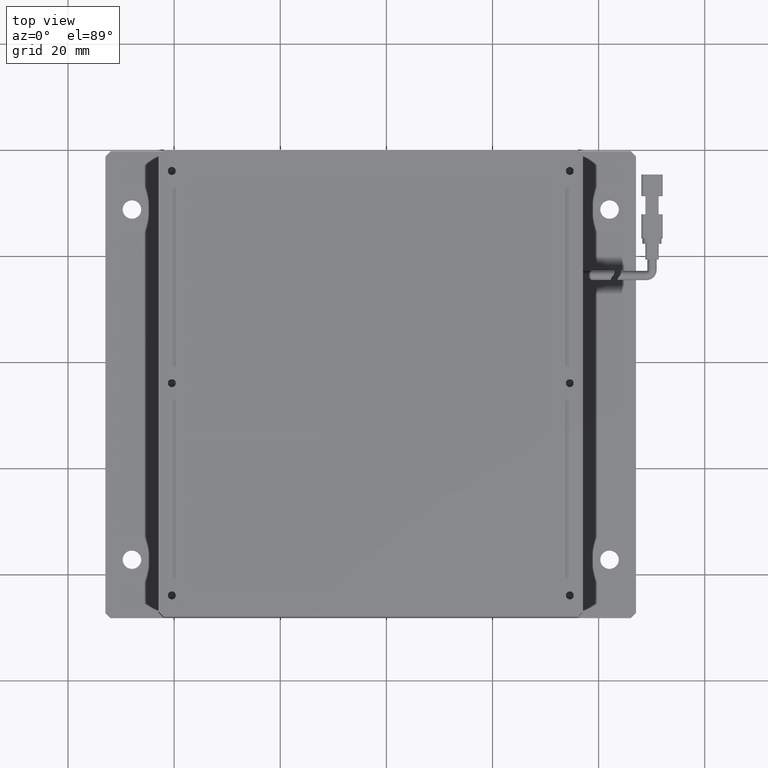
[diagram: clean part render]
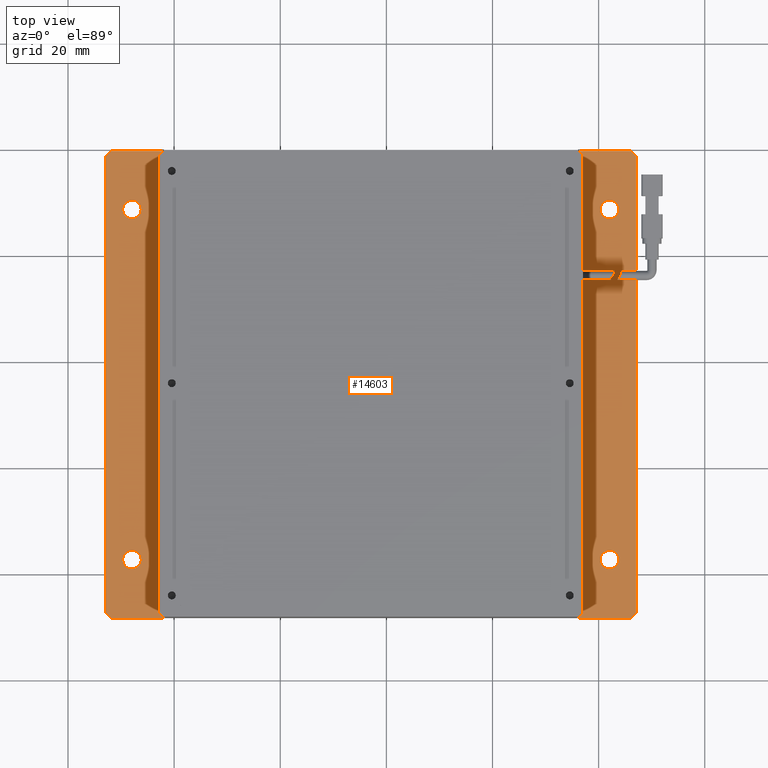
[diagram: same view with one face highlighted and labeled with its STEP entity id]
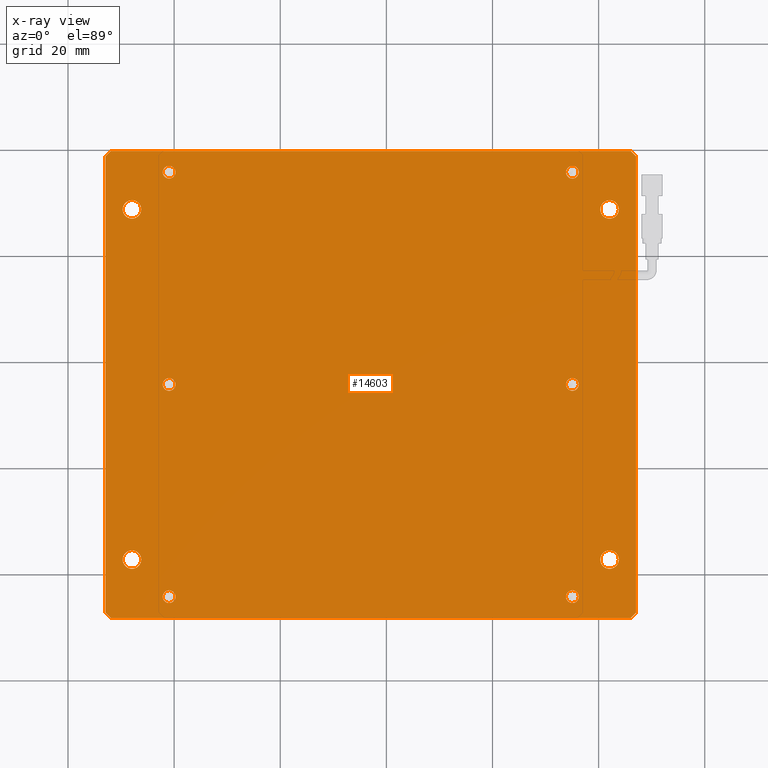
[diagram: x-ray of the same camera — body ghosted, the highlighted face saturated]
A machine part, top view. The second image highlights one B-rep face of the part: STEP entity #14603.
The next image is the same camera in x-ray: the body ghosted, the highlighted face saturated — about 0% of this face is hidden behind the body in this view.
In plain terms, the highlighted planar face has unit normal (0, 0, -1).
Its self-contained STEP definition (entity closure, byte-faithful):
#8 = FACE_BOUND ( 'NONE', #17206, .T. ) ;
#54 = DIRECTION ( 'NONE',  ( -1.000000000000000000, 0.0000000000000000000, 0.0000000000000000000 ) ) ;
#349 = ORIENTED_EDGE ( 'NONE', *, *, #7487, .F. ) ;
#379 = CIRCLE ( 'NONE', #12371, 1.750000000000001600 ) ;
#456 = FACE_BOUND ( 'NONE', #9632, .T. ) ;
#530 = DIRECTION ( 'NONE',  ( -1.000000000000000000, 0.0000000000000000000, 0.0000000000000000000 ) ) ;
#613 = AXIS2_PLACEMENT_3D ( 'NONE', #10000, #1775, #11357 ) ;
#753 = CIRCLE ( 'NONE', #13976, 1.199999999999992600 ) ;
#855 = EDGE_LOOP ( 'NONE', ( #11399, #8693 ) ) ;
#862 = CARTESIAN_POINT ( 'NONE',  ( -27.94768995799927000, 28.79992363497522900, -4.547577592273199800E-012 ) ) ;
#940 = CARTESIAN_POINT ( 'NONE',  ( -32.94768995799925900, 39.79992363497521500, -4.547577592273199800E-012 ) ) ;
#944 = CIRCLE ( 'NONE', #12738, 1.199999999999992600 ) ;
#979 = ORIENTED_EDGE ( 'NONE', *, *, #6898, .F. ) ;
#1216 = AXIS2_PLACEMENT_3D ( 'NONE', #4916, #14422, #6324 ) ;
#1252 = CARTESIAN_POINT ( 'NONE',  ( 56.25231004200073000, -4.200076365024784800, -4.547577592273199800E-012 ) ) ;
#1280 = CARTESIAN_POINT ( 'NONE',  ( -32.94768995799927300, 38.79992363497520800, -4.547577592273199800E-012 ) ) ;
#1420 = DIRECTION ( 'NONE',  ( -1.000000000000000000, 0.0000000000000000000, 0.0000000000000000000 ) ) ;
#1425 = DIRECTION ( 'NONE',  ( -1.000000000000000000, 0.0000000000000000000, 0.0000000000000000000 ) ) ;
#1427 = CIRCLE ( 'NONE', #16147, 1.749999999999998000 ) ;
#1440 = ORIENTED_EDGE ( 'NONE', *, *, #13817, .F. ) ;
#1534 = VERTEX_POINT ( 'NONE', #14886 ) ;
#1538 = EDGE_CURVE ( 'NONE', #14048, #6013, #6396, .T. ) ;
#1588 = DIRECTION ( 'NONE',  ( 0.0000000000000000000, 0.0000000000000000000, -1.000000000000000000 ) ) ;
#1740 = VERTEX_POINT ( 'NONE', #7171 ) ;
#1775 = DIRECTION ( 'NONE',  ( 0.0000000000000000000, 0.0000000000000000000, 1.000000000000000000 ) ) ;
#1821 = EDGE_LOOP ( 'NONE', ( #12837, #14396 ) ) ;
#1872 = VERTEX_POINT ( 'NONE', #3298 ) ;
#2027 = CIRCLE ( 'NONE', #13961, 1.199999999999992600 ) ;
#2036 = CARTESIAN_POINT ( 'NONE',  ( 56.25231004200073000, -44.20007636502478500, -4.547577592273199800E-012 ) ) ;
#2089 = CARTESIAN_POINT ( 'NONE',  ( -20.94768995799925200, -4.200076365024784800, -4.547577592273199800E-012 ) ) ;
#2137 = VERTEX_POINT ( 'NONE', #10079 ) ;
#2245 = DIRECTION ( 'NONE',  ( -1.000000000000000000, 0.0000000000000000000, 0.0000000000000000000 ) ) ;
#2508 = DIRECTION ( 'NONE',  ( 0.0000000000000000000, 0.0000000000000000000, 1.000000000000000000 ) ) ;
#2799 = CARTESIAN_POINT ( 'NONE',  ( -32.94768995799925900, 39.79992363497521500, -4.547577592273199800E-012 ) ) ;
#2844 = CARTESIAN_POINT ( 'NONE',  ( -19.74768995799926300, 35.79992363497520800, -4.547577592273199800E-012 ) ) ;
#2884 = DIRECTION ( 'NONE',  ( -0.0000000000000000000, -1.000000000000000000, -0.0000000000000000000 ) ) ;
#2900 = EDGE_CURVE ( 'NONE', #14671, #9446, #5189, .T. ) ;
#3070 = CARTESIAN_POINT ( 'NONE',  ( -26.19768995799929500, -37.20007636502477100, -4.547577592273199800E-012 ) ) ;
#3112 = EDGE_CURVE ( 'NONE', #16464, #17630, #10925, .T. ) ;
#3288 = CARTESIAN_POINT ( 'NONE',  ( -20.94768995799925500, -44.20007636502478500, -4.547577592273199800E-012 ) ) ;
#3298 = CARTESIAN_POINT ( 'NONE',  ( -26.19768995799927000, 28.79992363497522900, -4.547577592273199800E-012 ) ) ;
#3462 = VERTEX_POINT ( 'NONE', #2036 ) ;
#3492 = DIRECTION ( 'NONE',  ( -1.000000000000000000, 0.0000000000000000000, 0.0000000000000000000 ) ) ;
#3521 = CARTESIAN_POINT ( 'NONE',  ( -20.94768995799925500, 35.79992363497520800, -4.547577592273199800E-012 ) ) ;
#3531 = CIRCLE ( 'NONE', #6029, 1.749999999999998000 ) ;
#3583 = VERTEX_POINT ( 'NONE', #14526 ) ;
#3691 = AXIS2_PLACEMENT_3D ( 'NONE', #17784, #9668, #1420 ) ;
#3704 = CARTESIAN_POINT ( 'NONE',  ( -29.69768995799929100, -37.20007636502477100, -4.547577592273199800E-012 ) ) ;
#3725 = FACE_BOUND ( 'NONE', #10448, .T. ) ;
#3747 = AXIS2_PLACEMENT_3D ( 'NONE', #12155, #3933, #13511 ) ;
#3756 = CIRCLE ( 'NONE', #6735, 1.199999999999992600 ) ;
#3884 = ORIENTED_EDGE ( 'NONE', *, *, #12918, .F. ) ;
#3933 = DIRECTION ( 'NONE',  ( 0.0000000000000000000, 0.0000000000000000000, 1.000000000000000000 ) ) ;
#3989 = ORIENTED_EDGE ( 'NONE', *, *, #9517, .F. ) ;
#4055 = CIRCLE ( 'NONE', #9401, 1.199999999999992600 ) ;
#4076 = LINE ( 'NONE', #7313, #11366 ) ;
#4160 = FACE_BOUND ( 'NONE', #8525, .T. ) ;
#4235 = EDGE_LOOP ( 'NONE', ( #14066, #8201 ) ) ;
#4300 = PLANE ( 'NONE',  #11171 ) ;
#4527 = VERTEX_POINT ( 'NONE', #1252 ) ;
#4636 = EDGE_CURVE ( 'NONE', #9135, #14671, #10792, .T. ) ;
#4662 = CIRCLE ( 'NONE', #7314, 1.199999999999992600 ) ;
#4690 = DIRECTION ( 'NONE',  ( -1.000000000000000000, 0.0000000000000000000, 0.0000000000000000000 ) ) ;
#4695 = CARTESIAN_POINT ( 'NONE',  ( 55.05231004200073400, -44.20007636502478500, -4.547577592273199800E-012 ) ) ;
#4903 = VERTEX_POINT ( 'NONE', #9029 ) ;
#4916 = CARTESIAN_POINT ( 'NONE',  ( 62.05231004200072700, 28.79992363497521500, -4.547577592273199800E-012 ) ) ;
#4928 = DIRECTION ( 'NONE',  ( -1.000000000000000000, 0.0000000000000000000, 0.0000000000000000000 ) ) ;
#4975 = DIRECTION ( 'NONE',  ( 0.0000000000000000000, 0.0000000000000000000, 1.000000000000000000 ) ) ;
#4983 = AXIS2_PLACEMENT_3D ( 'NONE', #13141, #4975, #14481 ) ;
#5070 = FACE_OUTER_BOUND ( 'NONE', #12857, .T. ) ;
#5189 = LINE ( 'NONE', #2799, #7989 ) ;
#5283 = CARTESIAN_POINT ( 'NONE',  ( -19.74768995799926300, -44.20007636502478500, -4.547577592273199800E-012 ) ) ;
#5381 = EDGE_CURVE ( 'NONE', #10566, #16097, #379, .T. ) ;
#5420 = DIRECTION ( 'NONE',  ( 0.0000000000000000000, 0.0000000000000000000, 1.000000000000000000 ) ) ;
#5509 = EDGE_CURVE ( 'NONE', #4903, #14979, #6065, .T. ) ;
#5525 = LINE ( 'NONE', #1280, #12340 ) ;
#6013 = VERTEX_POINT ( 'NONE', #13545 ) ;
#6026 = LINE ( 'NONE', #9698, #16405 ) ;
#6029 = AXIS2_PLACEMENT_3D ( 'NONE', #862, #10488, #2245 ) ;
#6065 = CIRCLE ( 'NONE', #3747, 1.199999999999992600 ) ;
#6104 = DIRECTION ( 'NONE',  ( -1.000000000000000000, 0.0000000000000000000, 0.0000000000000000000 ) ) ;
#6310 = LINE ( 'NONE', #6846, #13102 ) ;
#6324 = DIRECTION ( 'NONE',  ( -1.000000000000000000, 0.0000000000000000000, 0.0000000000000000000 ) ) ;
#6396 = CIRCLE ( 'NONE', #11508, 1.750000000000001600 ) ;
#6735 = AXIS2_PLACEMENT_3D ( 'NONE', #4695, #14205, #6104 ) ;
#6738 = EDGE_CURVE ( 'NONE', #16812, #17652, #10647, .T. ) ;
#6846 = CARTESIAN_POINT ( 'NONE',  ( 66.05231004200074100, 39.79992363497521500, -4.547577592273199800E-012 ) ) ;
#6898 = EDGE_CURVE ( 'NONE', #16097, #10566, #12762, .T. ) ;
#6973 = CIRCLE ( 'NONE', #7963, 1.199999999999992600 ) ;
#7042 = DIRECTION ( 'NONE',  ( -1.000000000000000000, 0.0000000000000000000, -0.0000000000000000000 ) ) ;
#7171 = CARTESIAN_POINT ( 'NONE',  ( -22.14768995799924800, 35.79992363497520800, -4.547577592273199800E-012 ) ) ;
#7176 = VERTEX_POINT ( 'NONE', #8342 ) ;
#7178 = EDGE_CURVE ( 'NONE', #16070, #13908, #6973, .T. ) ;
#7240 = CARTESIAN_POINT ( 'NONE',  ( 55.05231004200073400, -4.200076365024784800, -4.547577592273199800E-012 ) ) ;
#7313 = CARTESIAN_POINT ( 'NONE',  ( 67.05231004200074100, -47.20007636502479900, -4.547577592273199800E-012 ) ) ;
#7314 = AXIS2_PLACEMENT_3D ( 'NONE', #3521, #13104, #4928 ) ;
#7397 = EDGE_CURVE ( 'NONE', #13908, #16070, #8653, .T. ) ;
#7432 = FACE_BOUND ( 'NONE', #7947, .T. ) ;
#7487 = EDGE_CURVE ( 'NONE', #15737, #7176, #11604, .T. ) ;
#7754 = ORIENTED_EDGE ( 'NONE', *, *, #2900, .F. ) ;
#7847 = CARTESIAN_POINT ( 'NONE',  ( 62.05231004200072700, 28.79992363497521500, -4.547577592273199800E-012 ) ) ;
#7947 = EDGE_LOOP ( 'NONE', ( #11753, #3884 ) ) ;
#7963 = AXIS2_PLACEMENT_3D ( 'NONE', #16494, #8399, #54 ) ;
#7989 = VECTOR ( 'NONE', #8595, 1000.000000000000000 ) ;
#7993 = CARTESIAN_POINT ( 'NONE',  ( 62.05231004200072700, -37.20007636502477100, -4.547577592273199800E-012 ) ) ;
#8032 = VECTOR ( 'NONE', #13290, 1000.000000000000000 ) ;
#8068 = ORIENTED_EDGE ( 'NONE', *, *, #13000, .F. ) ;
#8128 = CARTESIAN_POINT ( 'NONE',  ( -19.74768995799926000, -4.200076365024784800, -4.547577592273199800E-012 ) ) ;
#8161 = ORIENTED_EDGE ( 'NONE', *, *, #8756, .F. ) ;
#8191 = CARTESIAN_POINT ( 'NONE',  ( 60.30231004200072700, 28.79992363497521500, -4.547577592273199800E-012 ) ) ;
#8201 = ORIENTED_EDGE ( 'NONE', *, *, #7178, .F. ) ;
#8274 = CARTESIAN_POINT ( 'NONE',  ( 63.80231004200073400, -37.20007636502477100, -4.547577592273199800E-012 ) ) ;
#8338 = DIRECTION ( 'NONE',  ( -1.000000000000000000, 0.0000000000000000000, 0.0000000000000000000 ) ) ;
#8342 = CARTESIAN_POINT ( 'NONE',  ( 66.05231004200076900, 39.79992363497521500, -4.547577592273199800E-012 ) ) ;
#8399 = DIRECTION ( 'NONE',  ( 0.0000000000000000000, 0.0000000000000000000, 1.000000000000000000 ) ) ;
#8525 = EDGE_LOOP ( 'NONE', ( #16644, #9802 ) ) ;
#8595 = DIRECTION ( 'NONE',  ( 0.0000000000000000000, 1.000000000000000000, 0.0000000000000000000 ) ) ;
#8597 = DIRECTION ( 'NONE',  ( -1.000000000000000000, 0.0000000000000000000, 0.0000000000000000000 ) ) ;
#8605 = DIRECTION ( 'NONE',  ( -0.7071067811865622300, -0.7071067811865328100, 0.0000000000000000000 ) ) ;
#8631 = VERTEX_POINT ( 'NONE', #13285 ) ;
#8653 = CIRCLE ( 'NONE', #13947, 1.199999999999992600 ) ;
#8693 = ORIENTED_EDGE ( 'NONE', *, *, #15496, .F. ) ;
#8756 = EDGE_CURVE ( 'NONE', #15386, #1872, #9634, .T. ) ;
#8831 = DIRECTION ( 'NONE',  ( 0.0000000000000000000, 0.0000000000000000000, 1.000000000000000000 ) ) ;
#8869 = ORIENTED_EDGE ( 'NONE', *, *, #4636, .F. ) ;
#8888 = VECTOR ( 'NONE', #11921, 999.9999999999998900 ) ;
#8940 = EDGE_CURVE ( 'NONE', #17652, #16812, #1427, .T. ) ;
#9029 = CARTESIAN_POINT ( 'NONE',  ( -22.14768995799924800, -44.20007636502478500, -4.547577592273199800E-012 ) ) ;
#9119 = EDGE_CURVE ( 'NONE', #14979, #4903, #753, .T. ) ;
#9129 = DIRECTION ( 'NONE',  ( 0.0000000000000000000, 0.0000000000000000000, 1.000000000000000000 ) ) ;
#9135 = VERTEX_POINT ( 'NONE', #15634 ) ;
#9180 = CARTESIAN_POINT ( 'NONE',  ( 62.05231004200072700, -37.20007636502477100, -4.547577592273199800E-012 ) ) ;
#9211 = DIRECTION ( 'NONE',  ( -1.000000000000000000, 0.0000000000000000000, 0.0000000000000000000 ) ) ;
#9220 = CIRCLE ( 'NONE', #12024, 1.750000000000001600 ) ;
#9223 = EDGE_CURVE ( 'NONE', #1740, #14559, #4662, .T. ) ;
#9271 = ORIENTED_EDGE ( 'NONE', *, *, #11353, .F. ) ;
#9343 = DIRECTION ( 'NONE',  ( -1.000000000000000000, 0.0000000000000000000, 0.0000000000000000000 ) ) ;
#9401 = AXIS2_PLACEMENT_3D ( 'NONE', #13554, #5420, #14904 ) ;
#9446 = VERTEX_POINT ( 'NONE', #12091 ) ;
#9475 = ORIENTED_EDGE ( 'NONE', *, *, #5381, .F. ) ;
#9517 = EDGE_CURVE ( 'NONE', #9446, #15737, #5525, .T. ) ;
#9525 = DIRECTION ( 'NONE',  ( 0.7071067811865474600, -0.7071067811865474600, 0.0000000000000000000 ) ) ;
#9632 = EDGE_LOOP ( 'NONE', ( #11629, #13247 ) ) ;
#9634 = CIRCLE ( 'NONE', #3691, 1.749999999999998000 ) ;
#9654 = CARTESIAN_POINT ( 'NONE',  ( -32.94768995799925900, -48.20007636502478500, -4.547577592273199800E-012 ) ) ;
#9668 = DIRECTION ( 'NONE',  ( 0.0000000000000000000, 0.0000000000000000000, 1.000000000000000000 ) ) ;
#9676 = DIRECTION ( 'NONE',  ( 0.0000000000000000000, 0.0000000000000000000, 1.000000000000000000 ) ) ;
#9698 = CARTESIAN_POINT ( 'NONE',  ( 67.05231004200074100, 39.79992363497521500, -4.547577592273199800E-012 ) ) ;
#9802 = ORIENTED_EDGE ( 'NONE', *, *, #9119, .F. ) ;
#9818 = CARTESIAN_POINT ( 'NONE',  ( -32.94768995799925900, 39.79992363497521500, -4.547577592273199800E-012 ) ) ;
#9877 = CARTESIAN_POINT ( 'NONE',  ( -32.94768995799925900, -47.20007636502478500, -4.547577592273199800E-012 ) ) ;
#10000 = CARTESIAN_POINT ( 'NONE',  ( -27.94768995799929100, -37.20007636502477100, -4.547577592273199800E-012 ) ) ;
#10079 = CARTESIAN_POINT ( 'NONE',  ( 67.05231004200074100, -47.20007636502479900, -4.547577592273199800E-012 ) ) ;
#10448 = EDGE_LOOP ( 'NONE', ( #15402, #12882 ) ) ;
#10470 = ORIENTED_EDGE ( 'NONE', *, *, #16741, .F. ) ;
#10488 = DIRECTION ( 'NONE',  ( 0.0000000000000000000, 0.0000000000000000000, 1.000000000000000000 ) ) ;
#10566 = VERTEX_POINT ( 'NONE', #13099 ) ;
#10608 = FACE_BOUND ( 'NONE', #13307, .T. ) ;
#10647 = CIRCLE ( 'NONE', #613, 1.749999999999998000 ) ;
#10760 = CARTESIAN_POINT ( 'NONE',  ( 55.05231004200073400, -44.20007636502478500, -4.547577592273199800E-012 ) ) ;
#10792 = LINE ( 'NONE', #14446, #8888 ) ;
#10925 = CIRCLE ( 'NONE', #14381, 1.199999999999992600 ) ;
#11024 = FACE_BOUND ( 'NONE', #855, .T. ) ;
#11171 = AXIS2_PLACEMENT_3D ( 'NONE', #9818, #1588, #11189 ) ;
#11189 = DIRECTION ( 'NONE',  ( -1.000000000000000000, 0.0000000000000000000, -0.0000000000000000000 ) ) ;
#11353 = EDGE_CURVE ( 'NONE', #7176, #3583, #6310, .T. ) ;
#11357 = DIRECTION ( 'NONE',  ( -1.000000000000000000, 0.0000000000000000000, 0.0000000000000000000 ) ) ;
#11366 = VECTOR ( 'NONE', #8605, 1000.000000000000000 ) ;
#11379 = CARTESIAN_POINT ( 'NONE',  ( -31.94768995799925900, 39.79992363497521500, -4.547577592273199800E-012 ) ) ;
#11399 = ORIENTED_EDGE ( 'NONE', *, *, #14217, .F. ) ;
#11441 = FACE_BOUND ( 'NONE', #4235, .T. ) ;
#11482 = CIRCLE ( 'NONE', #4983, 1.199999999999992600 ) ;
#11508 = AXIS2_PLACEMENT_3D ( 'NONE', #9180, #9129, #8338 ) ;
#11604 = LINE ( 'NONE', #940, #8032 ) ;
#11612 = ORIENTED_EDGE ( 'NONE', *, *, #15721, .F. ) ;
#11629 = ORIENTED_EDGE ( 'NONE', *, *, #9223, .F. ) ;
#11686 = DIRECTION ( 'NONE',  ( 0.0000000000000000000, 0.0000000000000000000, 1.000000000000000000 ) ) ;
#11753 = ORIENTED_EDGE ( 'NONE', *, *, #3112, .F. ) ;
#11921 = DIRECTION ( 'NONE',  ( -0.7071067811865424700, 0.7071067811865526800, 0.0000000000000000000 ) ) ;
#11934 = EDGE_CURVE ( 'NONE', #14559, #1740, #4055, .T. ) ;
#12024 = AXIS2_PLACEMENT_3D ( 'NONE', #7993, #17445, #9343 ) ;
#12091 = CARTESIAN_POINT ( 'NONE',  ( -32.94768995799926600, 38.79992363497523700, -4.547577592273199800E-012 ) ) ;
#12120 = DIRECTION ( 'NONE',  ( -1.000000000000000000, 0.0000000000000000000, 0.0000000000000000000 ) ) ;
#12155 = CARTESIAN_POINT ( 'NONE',  ( -20.94768995799925500, -44.20007636502478500, -4.547577592273199800E-012 ) ) ;
#12234 = DIRECTION ( 'NONE',  ( -1.000000000000000000, 0.0000000000000000000, 0.0000000000000000000 ) ) ;
#12340 = VECTOR ( 'NONE', #17644, 1000.000000000000000 ) ;
#12371 = AXIS2_PLACEMENT_3D ( 'NONE', #7847, #17306, #9211 ) ;
#12400 = ORIENTED_EDGE ( 'NONE', *, *, #13576, .F. ) ;
#12450 = EDGE_CURVE ( 'NONE', #6013, #14048, #9220, .T. ) ;
#12469 = DIRECTION ( 'NONE',  ( 0.0000000000000000000, 0.0000000000000000000, 1.000000000000000000 ) ) ;
#12472 = CARTESIAN_POINT ( 'NONE',  ( 53.85231004200074500, -44.20007636502478500, -4.547577592273199800E-012 ) ) ;
#12582 = CARTESIAN_POINT ( 'NONE',  ( 55.05231004200073400, 35.79992363497522200, -4.547577592273199800E-012 ) ) ;
#12738 = AXIS2_PLACEMENT_3D ( 'NONE', #7240, #16701, #8597 ) ;
#12762 = CIRCLE ( 'NONE', #1216, 1.750000000000001600 ) ;
#12837 = ORIENTED_EDGE ( 'NONE', *, *, #12450, .F. ) ;
#12857 = EDGE_LOOP ( 'NONE', ( #9271, #349, #3989, #7754, #8869, #12400, #11612, #10470 ) ) ;
#12863 = DIRECTION ( 'NONE',  ( 0.0000000000000000000, 0.0000000000000000000, 1.000000000000000000 ) ) ;
#12882 = ORIENTED_EDGE ( 'NONE', *, *, #6738, .F. ) ;
#12918 = EDGE_CURVE ( 'NONE', #17630, #16464, #2027, .T. ) ;
#13000 = EDGE_CURVE ( 'NONE', #8631, #4527, #944, .T. ) ;
#13099 = CARTESIAN_POINT ( 'NONE',  ( 63.80231004200073400, 28.79992363497521500, -4.547577592273199800E-012 ) ) ;
#13102 = VECTOR ( 'NONE', #9525, 1000.000000000000100 ) ;
#13104 = DIRECTION ( 'NONE',  ( 0.0000000000000000000, 0.0000000000000000000, 1.000000000000000000 ) ) ;
#13141 = CARTESIAN_POINT ( 'NONE',  ( 55.05231004200073400, -4.200076365024784800, -4.547577592273199800E-012 ) ) ;
#13208 = EDGE_CURVE ( 'NONE', #1872, #15386, #3531, .T. ) ;
#13219 = CARTESIAN_POINT ( 'NONE',  ( 56.25231004200073000, 35.79992363497522200, -4.547577592273199800E-012 ) ) ;
#13247 = ORIENTED_EDGE ( 'NONE', *, *, #11934, .F. ) ;
#13285 = CARTESIAN_POINT ( 'NONE',  ( 53.85231004200074500, -4.200076365024784800, -4.547577592273199800E-012 ) ) ;
#13290 = DIRECTION ( 'NONE',  ( 1.000000000000000000, -0.0000000000000000000, 0.0000000000000000000 ) ) ;
#13307 = EDGE_LOOP ( 'NONE', ( #979, #9475 ) ) ;
#13357 = LINE ( 'NONE', #9654, #16529 ) ;
#13362 = CARTESIAN_POINT ( 'NONE',  ( -22.14768995799924400, -4.200076365024784800, -4.547577592273199800E-012 ) ) ;
#13511 = DIRECTION ( 'NONE',  ( -1.000000000000000000, 0.0000000000000000000, 0.0000000000000000000 ) ) ;
#13545 = CARTESIAN_POINT ( 'NONE',  ( 60.30231004200072700, -37.20007636502477100, -4.547577592273199800E-012 ) ) ;
#13554 = CARTESIAN_POINT ( 'NONE',  ( -20.94768995799925500, 35.79992363497520800, -4.547577592273199800E-012 ) ) ;
#13569 = ORIENTED_EDGE ( 'NONE', *, *, #13208, .F. ) ;
#13576 = EDGE_CURVE ( 'NONE', #1534, #9135, #13357, .T. ) ;
#13817 = EDGE_CURVE ( 'NONE', #4527, #8631, #11482, .T. ) ;
#13908 = VERTEX_POINT ( 'NONE', #13362 ) ;
#13947 = AXIS2_PLACEMENT_3D ( 'NONE', #2089, #11686, #3492 ) ;
#13961 = AXIS2_PLACEMENT_3D ( 'NONE', #17790, #9676, #1425 ) ;
#13976 = AXIS2_PLACEMENT_3D ( 'NONE', #3288, #12863, #4690 ) ;
#14048 = VERTEX_POINT ( 'NONE', #8274 ) ;
#14066 = ORIENTED_EDGE ( 'NONE', *, *, #7397, .F. ) ;
#14156 = AXIS2_PLACEMENT_3D ( 'NONE', #10760, #2508, #12120 ) ;
#14195 = FACE_BOUND ( 'NONE', #1821, .T. ) ;
#14205 = DIRECTION ( 'NONE',  ( 0.0000000000000000000, 0.0000000000000000000, 1.000000000000000000 ) ) ;
#14217 = EDGE_CURVE ( 'NONE', #15629, #3462, #3756, .T. ) ;
#14381 = AXIS2_PLACEMENT_3D ( 'NONE', #12582, #12469, #12234 ) ;
#14396 = ORIENTED_EDGE ( 'NONE', *, *, #1538, .F. ) ;
#14422 = DIRECTION ( 'NONE',  ( 0.0000000000000000000, 0.0000000000000000000, 1.000000000000000000 ) ) ;
#14446 = CARTESIAN_POINT ( 'NONE',  ( -31.94768995799927300, -48.20007636502478500, -4.547577592273199800E-012 ) ) ;
#14470 = CARTESIAN_POINT ( 'NONE',  ( -29.69768995799926600, 28.79992363497522900, -4.547577592273199800E-012 ) ) ;
#14481 = DIRECTION ( 'NONE',  ( -1.000000000000000000, 0.0000000000000000000, 0.0000000000000000000 ) ) ;
#14526 = CARTESIAN_POINT ( 'NONE',  ( 67.05231004200074100, 38.79992363497520800, -4.547577592273199800E-012 ) ) ;
#14559 = VERTEX_POINT ( 'NONE', #2844 ) ;
#14603 = ADVANCED_FACE ( 'NONE', ( #5070, #11441, #4160, #456, #14626, #11024, #7432, #3725, #8, #14195, #10608 ), #4300, .F. ) ;
#14626 = FACE_BOUND ( 'NONE', #16820, .T. ) ;
#14671 = VERTEX_POINT ( 'NONE', #9877 ) ;
#14886 = CARTESIAN_POINT ( 'NONE',  ( 66.05231004200074100, -48.20007636502478500, -4.547577592273199800E-012 ) ) ;
#14904 = DIRECTION ( 'NONE',  ( -1.000000000000000000, 0.0000000000000000000, 0.0000000000000000000 ) ) ;
#14979 = VERTEX_POINT ( 'NONE', #5283 ) ;
#15386 = VERTEX_POINT ( 'NONE', #14470 ) ;
#15402 = ORIENTED_EDGE ( 'NONE', *, *, #8940, .F. ) ;
#15496 = EDGE_CURVE ( 'NONE', #3462, #15629, #16266, .T. ) ;
#15629 = VERTEX_POINT ( 'NONE', #12472 ) ;
#15634 = CARTESIAN_POINT ( 'NONE',  ( -31.94768995799927300, -48.20007636502478500, -4.547577592273199800E-012 ) ) ;
#15721 = EDGE_CURVE ( 'NONE', #2137, #1534, #4076, .T. ) ;
#15737 = VERTEX_POINT ( 'NONE', #11379 ) ;
#15818 = CARTESIAN_POINT ( 'NONE',  ( 53.85231004200074500, 35.79992363497522200, -4.547577592273199800E-012 ) ) ;
#16070 = VERTEX_POINT ( 'NONE', #8128 ) ;
#16097 = VERTEX_POINT ( 'NONE', #8191 ) ;
#16147 = AXIS2_PLACEMENT_3D ( 'NONE', #16927, #8831, #530 ) ;
#16266 = CIRCLE ( 'NONE', #14156, 1.199999999999992600 ) ;
#16405 = VECTOR ( 'NONE', #2884, 1000.000000000000000 ) ;
#16464 = VERTEX_POINT ( 'NONE', #15818 ) ;
#16494 = CARTESIAN_POINT ( 'NONE',  ( -20.94768995799925200, -4.200076365024784800, -4.547577592273199800E-012 ) ) ;
#16529 = VECTOR ( 'NONE', #7042, 1000.000000000000000 ) ;
#16644 = ORIENTED_EDGE ( 'NONE', *, *, #5509, .F. ) ;
#16701 = DIRECTION ( 'NONE',  ( 0.0000000000000000000, 0.0000000000000000000, 1.000000000000000000 ) ) ;
#16741 = EDGE_CURVE ( 'NONE', #3583, #2137, #6026, .T. ) ;
#16812 = VERTEX_POINT ( 'NONE', #3070 ) ;
#16820 = EDGE_LOOP ( 'NONE', ( #8068, #1440 ) ) ;
#16927 = CARTESIAN_POINT ( 'NONE',  ( -27.94768995799929100, -37.20007636502477100, -4.547577592273199800E-012 ) ) ;
#17206 = EDGE_LOOP ( 'NONE', ( #8161, #13569 ) ) ;
#17306 = DIRECTION ( 'NONE',  ( 0.0000000000000000000, 0.0000000000000000000, 1.000000000000000000 ) ) ;
#17445 = DIRECTION ( 'NONE',  ( 0.0000000000000000000, 0.0000000000000000000, 1.000000000000000000 ) ) ;
#17630 = VERTEX_POINT ( 'NONE', #13219 ) ;
#17644 = DIRECTION ( 'NONE',  ( 0.7071067811865512400, 0.7071067811865439100, 0.0000000000000000000 ) ) ;
#17652 = VERTEX_POINT ( 'NONE', #3704 ) ;
#17784 = CARTESIAN_POINT ( 'NONE',  ( -27.94768995799927000, 28.79992363497522900, -4.547577592273199800E-012 ) ) ;
#17790 = CARTESIAN_POINT ( 'NONE',  ( 55.05231004200073400, 35.79992363497522200, -4.547577592273199800E-012 ) ) ;